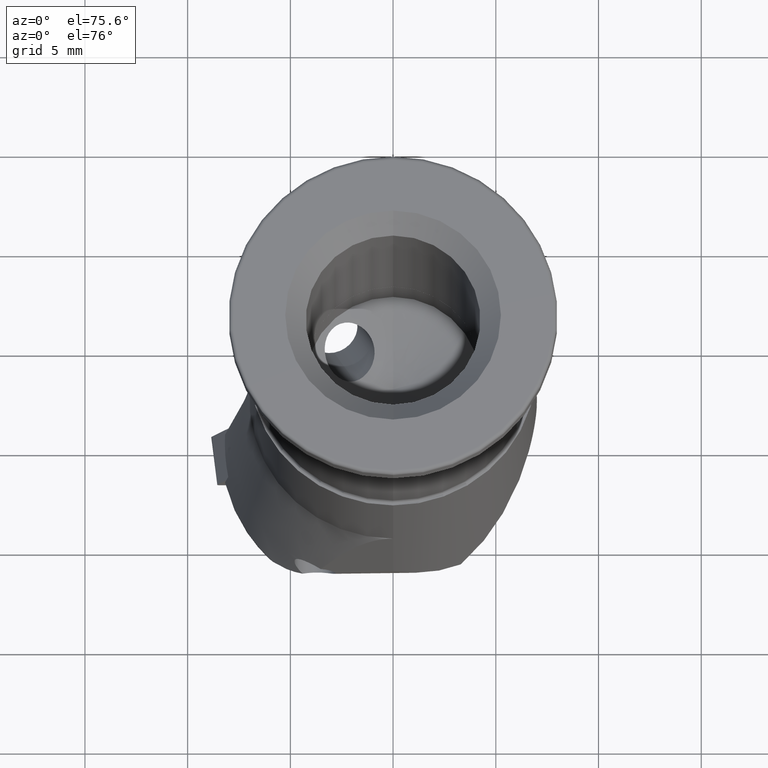
[diagram: clean part render]
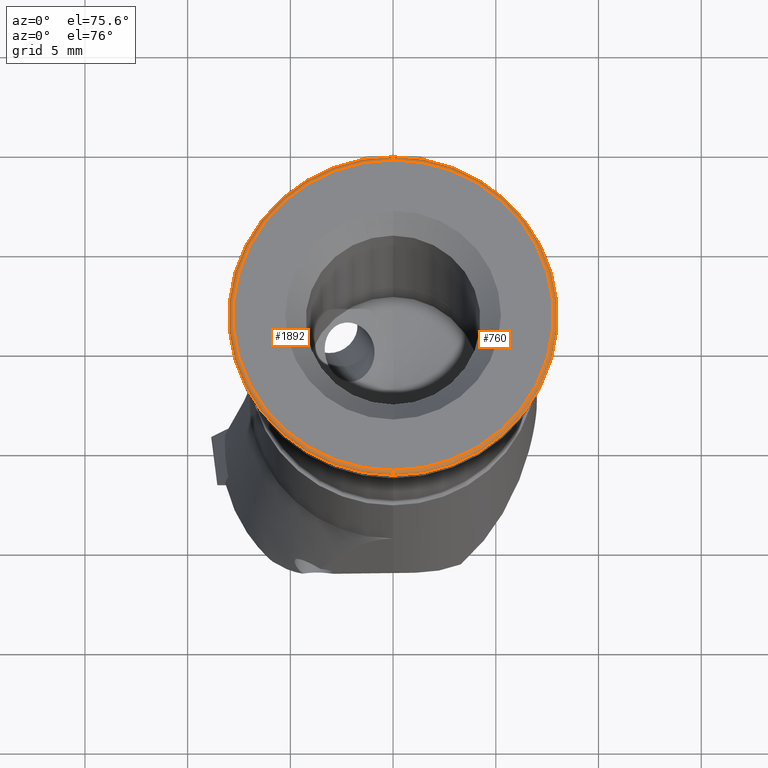
[diagram: same view with one multi-face feature highlighted, each face labeled with its STEP entity id]
A machine part, auxiliary view. The highlighted faces form ONE feature: a constant-radius fillet chain: 2 tangent blend faces with common blend radius 0.2 mm. The faces share edges in the B-rep.
Their STEP definitions:
[1] entity #1892 (Torus):
#712=EDGE_CURVE('NONE',#1644,#1148,#2025,.T.);
#972=EDGE_CURVE('NONE',#1696,#1958,#2308,.T.);
#1148=VERTEX_POINT('NONE',#2505);
#1562=EDGE_CURVE('NONE',#1696,#1148,#2973,.T.);
#1644=VERTEX_POINT('NONE',#3064);
#1682=EDGE_CURVE('NONE',#1958,#1644,#3108,.T.);
#1696=VERTEX_POINT('NONE',#3123);
#1892=ADVANCED_FACE('NONE',(#3330),#3331,.T.);
#1958=VERTEX_POINT('NONE',#3407);
#2025=CIRCLE('',#3487,7.8);
#2308=CIRCLE('',#3936,8.0);
#2505=CARTESIAN_POINT('',(0.0,-7.8,0.0));
#2973=CIRCLE('',#5739,0.2);
#3064=CARTESIAN_POINT('',(9.67470971326409E-016,7.8,-1.18481022830287E-031));
#3108=CIRCLE('',#6382,0.2);
#3123=CARTESIAN_POINT('',(-2.44929359829471E-017,-8.0,-0.2));
#3330=FACE_OUTER_BOUND('',#6804,.T.);
#3331=TOROIDAL_SURFACE('',#6805,7.8,0.2);
#3407=CARTESIAN_POINT('',(9.55224503334935E-016,8.0,-0.2));
#3487=AXIS2_PLACEMENT_3D('',#6990,#6991,#6992);
#3936=AXIS2_PLACEMENT_3D('',#7331,#7332,#7333);
#5739=AXIS2_PLACEMENT_3D('',#8161,#8162,#8163);
#6382=AXIS2_PLACEMENT_3D('',#8335,#8336,#8337);
#6804=EDGE_LOOP('',(#8524,#8525,#8526,#8527));
#6805=AXIS2_PLACEMENT_3D('',#8528,#8529,#8530);
#6990=CARTESIAN_POINT('',(0.0,0.0,0.0));
#6991=DIRECTION('',(1.22464679914735E-016,-0.0,1.0));
#6992=DIRECTION('',(0.0,1.0,0.0));
#7331=CARTESIAN_POINT('',(-2.44929359829471E-017,0.0,-0.2));
#7332=DIRECTION('',(-1.22464679914735E-016,-0.0,-1.0));
#7333=DIRECTION('',(0.0,-1.0,0.0));
#8161=CARTESIAN_POINT('',(-2.44929359829471E-017,-7.8,-0.2));
#8162=DIRECTION('',(-1.0,0.0,1.22464679914735E-016));
#8163=DIRECTION('',(0.0,1.0,0.0));
#8335=CARTESIAN_POINT('',(9.30731567351989E-016,7.8,-0.2));
#8336=DIRECTION('',(1.0,-1.22464679914736E-016,-1.22464679914735E-016));
#8337=DIRECTION('',(-1.22464679914736E-016,-1.0,1.49975978266186E-032));
#8524=ORIENTED_EDGE('',*,*,#1682,.F.);
#8525=ORIENTED_EDGE('',*,*,#972,.F.);
#8526=ORIENTED_EDGE('',*,*,#1562,.T.);
#8527=ORIENTED_EDGE('',*,*,#712,.F.);
#8528=CARTESIAN_POINT('',(-2.44929359829471E-017,0.0,-0.2));
#8529=DIRECTION('',(1.22464679914735E-016,0.0,1.0));
#8530=DIRECTION('',(0.0,-1.0,0.0));
[2] entity #760 (Torus):
#760=ADVANCED_FACE('NONE',(#2075),#2076,.T.);
#1146=EDGE_CURVE('NONE',#1958,#1696,#2503,.T.);
#1148=VERTEX_POINT('NONE',#2505);
#1562=EDGE_CURVE('NONE',#1696,#1148,#2973,.T.);
#1644=VERTEX_POINT('NONE',#3064);
#1682=EDGE_CURVE('NONE',#1958,#1644,#3108,.T.);
#1696=VERTEX_POINT('NONE',#3123);
#1724=EDGE_CURVE('NONE',#1148,#1644,#3152,.T.);
#1958=VERTEX_POINT('NONE',#3407);
#2075=FACE_OUTER_BOUND('',#3572,.T.);
#2076=TOROIDAL_SURFACE('',#3573,7.8,0.2);
#2503=CIRCLE('',#4567,8.0);
#2505=CARTESIAN_POINT('',(0.0,-7.8,0.0));
#2973=CIRCLE('',#5739,0.2);
#3064=CARTESIAN_POINT('',(9.67470971326409E-016,7.8,-1.18481022830287E-031));
#3108=CIRCLE('',#6382,0.2);
#3123=CARTESIAN_POINT('',(-2.44929359829471E-017,-8.0,-0.2));
#3152=CIRCLE('',#6457,7.8);
#3407=CARTESIAN_POINT('',(9.55224503334935E-016,8.0,-0.2));
#3572=EDGE_LOOP('',(#7028,#7029,#7030,#7031));
#3573=AXIS2_PLACEMENT_3D('',#7032,#7033,#7034);
#4567=AXIS2_PLACEMENT_3D('',#7561,#7562,#7563);
#5739=AXIS2_PLACEMENT_3D('',#8161,#8162,#8163);
#6382=AXIS2_PLACEMENT_3D('',#8335,#8336,#8337);
#6457=AXIS2_PLACEMENT_3D('',#8370,#8371,#8372);
#7028=ORIENTED_EDGE('',*,*,#1146,.F.);
#7029=ORIENTED_EDGE('',*,*,#1682,.T.);
#7030=ORIENTED_EDGE('',*,*,#1724,.F.);
#7031=ORIENTED_EDGE('',*,*,#1562,.F.);
#7032=CARTESIAN_POINT('',(-2.44929359829471E-017,0.0,-0.2));
#7033=DIRECTION('',(1.22464679914735E-016,0.0,1.0));
#7034=DIRECTION('',(0.0,-1.0,0.0));
#7561=CARTESIAN_POINT('',(-2.44929359829471E-017,0.0,-0.2));
#7562=DIRECTION('',(-1.22464679914735E-016,-0.0,-1.0));
#7563=DIRECTION('',(0.0,-1.0,0.0));
#8161=CARTESIAN_POINT('',(-2.44929359829471E-017,-7.8,-0.2));
#8162=DIRECTION('',(-1.0,0.0,1.22464679914735E-016));
#8163=DIRECTION('',(0.0,1.0,0.0));
#8335=CARTESIAN_POINT('',(9.30731567351989E-016,7.8,-0.2));
#8336=DIRECTION('',(1.0,-1.22464679914736E-016,-1.22464679914735E-016));
#8337=DIRECTION('',(-1.22464679914736E-016,-1.0,1.49975978266186E-032));
#8370=CARTESIAN_POINT('',(0.0,0.0,0.0));
#8371=DIRECTION('',(1.22464679914735E-016,-0.0,1.0));
#8372=DIRECTION('',(0.0,1.0,0.0));